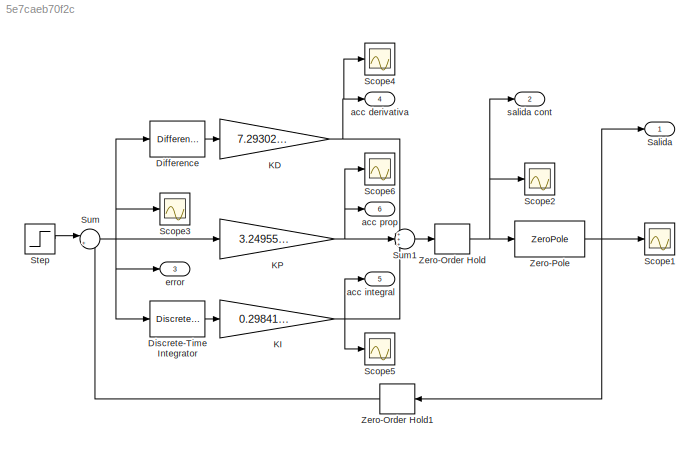
MODEL slx_5e7caeb70f2c
KIND model
BLOCK [Reference] Difference  REF=simulink/Discrete/Difference
  DoSatur = off
  ICPrevInput = 0.0
  InputProcessing = Inherited
  LockScale = off
  OutDataType = fixdt(1, 16)
  OutDataTypeStr = Inherit: Inherit via internal rule
  OutMax = []
  OutMin = []
  OutScaling = 2^-10
  OutputDataTypeScalingMode = Inherit via internal rule
  Ports = [1, 1]
  RndMeth = Floor
  SourceBlock = simulink/Discrete/Difference
  SourceType = Difference
BLOCK [DiscreteIntegrator] Discrete-Time Integrator
  ICPrevOutput = DiscIntNeverNeededParam
  ICPrevScaledInput = DiscIntNeverNeededParam
  IntegratorMethod = Accumulation: Forward Euler
  Ports = [1, 1]
  SampleTime = -1
BLOCK [Gain] KD
  Gain = 7.29302777
  OutDataTypeStr = Inherit: Inherit via internal rule
  ParamDataTypeStr = Inherit: Inherit via internal rule
  SaturateOnIntegerOverflow = off
BLOCK [Gain] KI
  Gain = 0.29841457
  OutDataTypeStr = Inherit: Inherit via internal rule
  ParamDataTypeStr = Inherit: Inherit via internal rule
  SaturateOnIntegerOverflow = off
BLOCK [Gain] KP
  Gain = 3.24955766
  OutDataTypeStr = Inherit: Inherit via internal rule
  ParamDataTypeStr = Inherit: Inherit via internal rule
  SaturateOnIntegerOverflow = off
BLOCK [Outport] Salida
  IconDisplay = Port number
BLOCK [Scope] Scope1
  DataFormat = StructureWithTime
  Floating = off
  LimitDataPoints = off
  NumInputPorts = 1
  Ports = [1]
  SampleInput = on
  SampleTime = 0
  ShowLegends = on
  YMax = 1.03
  YMin = 0.96
BLOCK [Scope] Scope2
  DataFormat = StructureWithTime
  Floating = off
  LimitDataPoints = off
  NumInputPorts = 1
  Ports = [1]
  SampleInput = on
  SampleTime = 0
  SaveName = ScopeData1
  ShowLegends = on
  YMax = 0.6
  YMin = 0.599998
BLOCK [Scope] Scope3
  DataFormat = StructureWithTime
  Floating = off
  LimitDataPoints = off
  NumInputPorts = 1
  Ports = [1]
  SampleInput = on
  SampleTime = 0
  SaveName = ScopeData5
  ShowLegends = on
  YMax = 1.03
  YMin = 0.96
BLOCK [Scope] Scope4
  DataFormat = StructureWithTime
  Floating = off
  LimitDataPoints = off
  NumInputPorts = 1
  Ports = [1]
  SampleInput = on
  SampleTime = 0
  SaveName = ScopeData2
  ShowLegends = on
  YMax = 1.03
  YMin = 0.96
BLOCK [Scope] Scope5
  DataFormat = StructureWithTime
  Floating = off
  LimitDataPoints = off
  NumInputPorts = 1
  Ports = [1]
  SampleInput = on
  SampleTime = 0
  SaveName = ScopeData4
  ShowLegends = on
  YMax = 1.03
  YMin = 0.96
BLOCK [Scope] Scope6
  DataFormat = StructureWithTime
  Floating = off
  LimitDataPoints = off
  NumInputPorts = 1
  Ports = [1]
  SampleInput = on
  SampleTime = 0
  SaveName = ScopeData3
  ShowLegends = on
  YMax = 1.03
  YMin = 0.96
BLOCK [Step] Step
  SampleTime = 0.07
  Time = 0
BLOCK [Sum] Sum
  IconShape = round
  InputSameDT = off
  Inputs = |+-
  OutDataTypeStr = Inherit: Inherit via internal rule
  Ports = [2, 1]
  SaturateOnIntegerOverflow = off
BLOCK [Sum] Sum1
  IconShape = round
  InputSameDT = off
  Inputs = +++
  OutDataTypeStr = Inherit: Inherit via internal rule
  Ports = [3, 1]
  SaturateOnIntegerOverflow = off
BLOCK [ZeroOrderHold] Zero-Order Hold
  SampleTime = 0.07
BLOCK [ZeroOrderHold] Zero-Order Hold1
  SampleTime = 0.07
BLOCK [ZeroPole] Zero-Pole
  Gain = [10]
  Poles = [-2 -3]
  Zeros = []
BLOCK [Outport] acc derivativa
  IconDisplay = Port number
  Port = 4
BLOCK [Outport] acc integral
  IconDisplay = Port number
  Port = 5
BLOCK [Outport] acc prop
  IconDisplay = Port number
  Port = 6
BLOCK [Outport] error
  IconDisplay = Port number
  Port = 3
BLOCK [Outport] salida cont
  IconDisplay = Port number
  Port = 2
LINE Difference:1 -> KD:1
LINE Discrete-Time Integrator:1 -> KI:1
NET KD:1 -> Scope4:1, Sum1:1, acc derivativa:1
NET KI:1 -> Scope5:1, Sum1:3, acc integral:1
NET KP:1 -> Scope6:1, Sum1:2, acc prop:1
LINE Step:1 -> Sum:1
LINE Sum1:1 -> Zero-Order Hold:1
NET Sum:1 -> Difference:1, Discrete-Time Integrator:1, KP:1, Scope3:1, error:1
LINE Zero-Order Hold1:1 -> Sum:2
NET Zero-Order Hold:1 -> Scope2:1, Zero-Pole:1, salida cont:1
NET Zero-Pole:1 -> Salida:1, Scope1:1, Zero-Order Hold1:1
note: NET lines group one-source signal fan-out (src -> all destinations, sorted); 1:1 wires keep LINE
